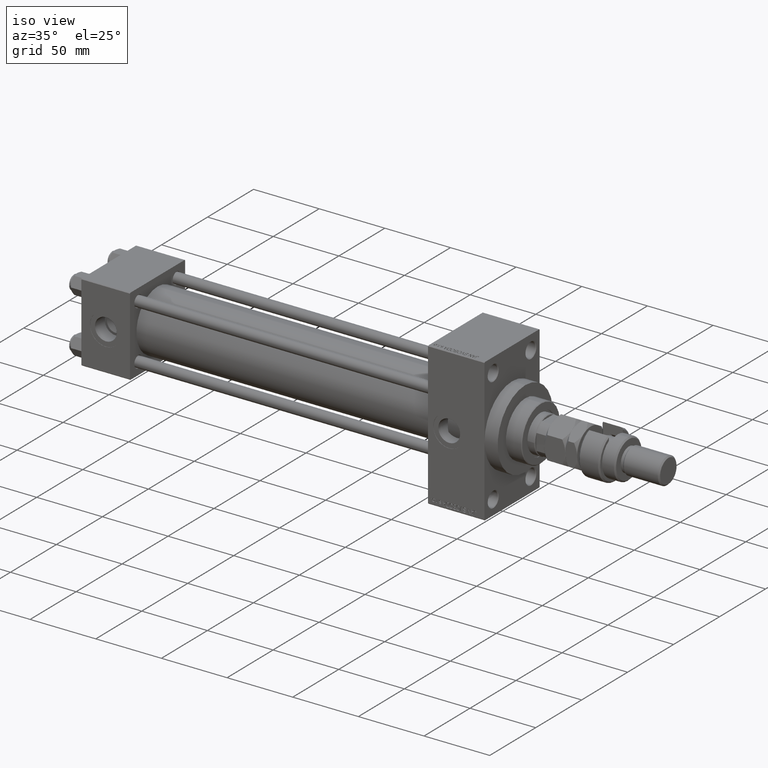
[diagram: clean part render]
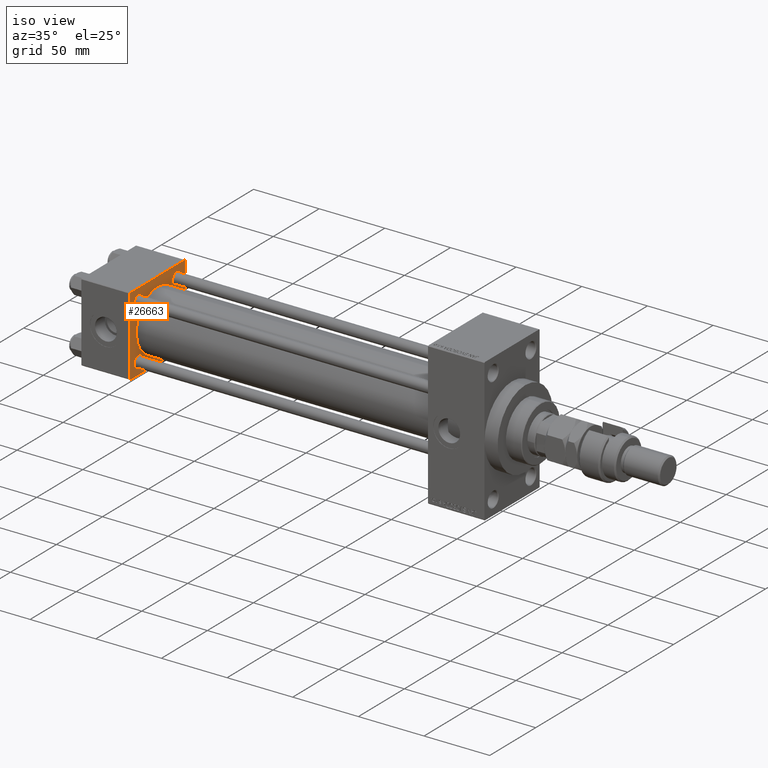
[diagram: same view with one face highlighted and labeled with its STEP entity id]
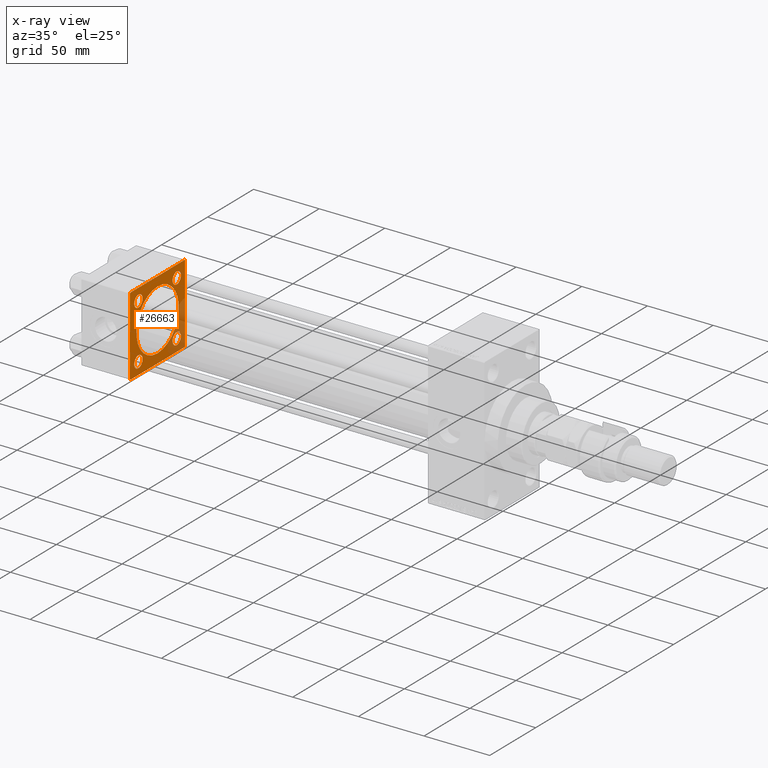
[diagram: x-ray of the same camera — body ghosted, the highlighted face saturated]
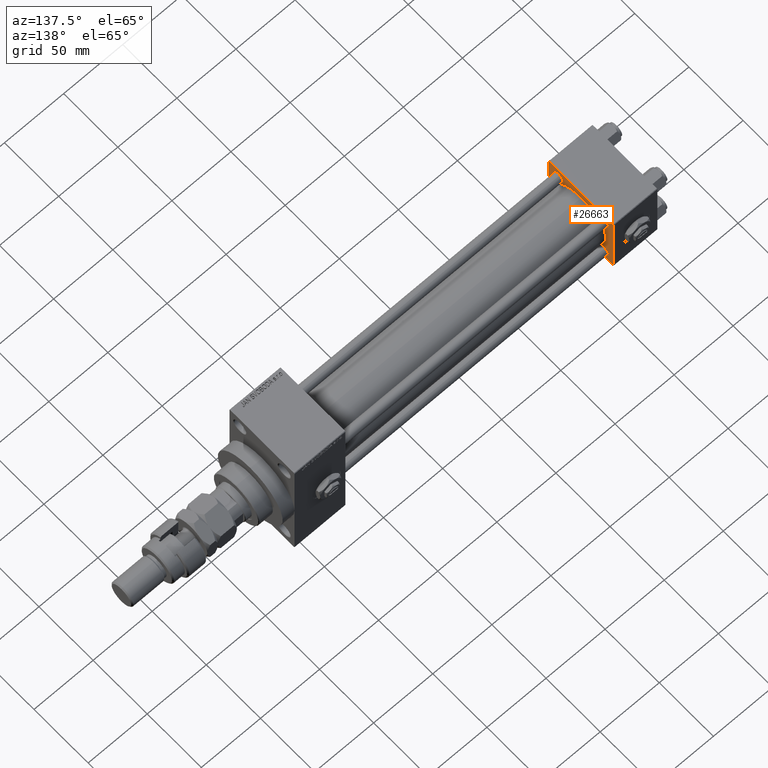
[diagram: same view with one face highlighted and labeled with its STEP entity id]
A machine part, iso view. The second image highlights one B-rep face of the part: STEP entity #26663.
The next image is the same camera in x-ray: the body ghosted, the highlighted face saturated — about 21% of this face is hidden behind the body in this view.
A second angle (auxiliary view) of the same face is appended — the face is thin or edge-on in the first view.
In plain terms, the highlighted planar face has unit normal (-1, 0, 0).
Its self-contained STEP definition (entity closure, byte-faithful):
#1260 = ORIENTED_EDGE ( 'NONE', *, *, #9073, .T. ) ;
#1601 = CARTESIAN_POINT ( 'NONE',  ( 37.00000000000000000, -29.50000000000000000, -30.00000000000000711 ) ) ;
#2236 = AXIS2_PLACEMENT_3D ( 'NONE', #42255, #33568, #41212 ) ;
#2408 = CARTESIAN_POINT ( 'NONE',  ( 37.00000000000000000, 29.99999999999999289, 29.50000000000000000 ) ) ;
#2424 = CARTESIAN_POINT ( 'NONE',  ( 37.00000000000000000, 29.99999999999999289, -29.50000000000000000 ) ) ;
#2567 = CARTESIAN_POINT ( 'NONE',  ( 37.00000000000000000, -20.84999999999999076, 16.34999999999994458 ) ) ;
#2688 = DIRECTION ( 'NONE',  ( -1.000000000000000000, 0.000000000000000000, -0.000000000000000000 ) ) ;
#2936 = EDGE_CURVE ( 'NONE', #15443, #46881, #31675, .T. ) ;
#2949 = LINE ( 'NONE', #30103, #3496 ) ;
#3020 = ORIENTED_EDGE ( 'NONE', *, *, #6088, .T. ) ;
#3212 = DIRECTION ( 'NONE',  ( -0.000000000000000000, 0.000000000000000000, 1.000000000000000000 ) ) ;
#3388 = CARTESIAN_POINT ( 'NONE',  ( 37.00000000000000711, -2.602085213965210642E-15, 0.000000000000000000 ) ) ;
#3496 = VECTOR ( 'NONE', #19015, 1000.000000000000000 ) ;
#3646 = CARTESIAN_POINT ( 'NONE',  ( 37.00000000000000000, -30.00000000000000000, 29.49999999999999289 ) ) ;
#3701 = VERTEX_POINT ( 'NONE', #6055 ) ;
#3730 = FACE_OUTER_BOUND ( 'NONE', #33419, .T. ) ;
#4382 = DIRECTION ( 'NONE',  ( -0.000000000000000000, 0.7071067811865574537, 0.7071067811865376918 ) ) ;
#4676 = ORIENTED_EDGE ( 'NONE', *, *, #36414, .F. ) ;
#4931 = AXIS2_PLACEMENT_3D ( 'NONE', #13919, #25282, #30278 ) ;
#5001 = VERTEX_POINT ( 'NONE', #9949 ) ;
#5130 = EDGE_CURVE ( 'NONE', #36057, #13940, #15205, .T. ) ;
#5198 = EDGE_CURVE ( 'NONE', #3701, #48445, #19954, .T. ) ;
#6055 = CARTESIAN_POINT ( 'NONE',  ( 37.00000000000000711, -2.602085213965210642E-15, 23.00000000000000000 ) ) ;
#6088 = EDGE_CURVE ( 'NONE', #30798, #50260, #11521, .T. ) ;
#6510 = CIRCLE ( 'NONE', #38499, 4.500000000000059508 ) ;
#6556 = EDGE_CURVE ( 'NONE', #33946, #9984, #15692, .T. ) ;
#6758 = CARTESIAN_POINT ( 'NONE',  ( 37.00000000000000000, 20.84999999999999787, -25.35000000000005826 ) ) ;
#7096 = DIRECTION ( 'NONE',  ( -1.000000000000000000, 0.000000000000000000, -0.000000000000000000 ) ) ;
#8455 = EDGE_CURVE ( 'NONE', #23105, #11040, #30910, .T. ) ;
#8730 = EDGE_CURVE ( 'NONE', #29597, #30798, #27229, .T. ) ;
#8857 = DIRECTION ( 'NONE',  ( 1.000000000000000000, -0.000000000000000000, 0.000000000000000000 ) ) ;
#9073 = EDGE_CURVE ( 'NONE', #5001, #33977, #6510, .T. ) ;
#9892 = VECTOR ( 'NONE', #15727, 1000.000000000000114 ) ;
#9949 = CARTESIAN_POINT ( 'NONE',  ( 37.00000000000000000, -20.84999999999999076, 25.35000000000006182 ) ) ;
#9984 = VERTEX_POINT ( 'NONE', #16316 ) ;
#10011 = CIRCLE ( 'NONE', #12521, 23.00000000000000000 ) ;
#10996 = LINE ( 'NONE', #11774, #21444 ) ;
#11040 = VERTEX_POINT ( 'NONE', #40060 ) ;
#11085 = EDGE_CURVE ( 'NONE', #46881, #15443, #33571, .T. ) ;
#11373 = FACE_BOUND ( 'NONE', #46106, .T. ) ;
#11455 = ORIENTED_EDGE ( 'NONE', *, *, #5198, .F. ) ;
#11521 = LINE ( 'NONE', #23128, #9892 ) ;
#11774 = CARTESIAN_POINT ( 'NONE',  ( 37.00000000000000000, 29.99999999999999289, 30.00000000000000000 ) ) ;
#11831 = VERTEX_POINT ( 'NONE', #2408 ) ;
#11924 = CIRCLE ( 'NONE', #24567, 4.500000000000059508 ) ;
#12221 = EDGE_CURVE ( 'NONE', #48445, #3701, #10011, .T. ) ;
#12521 = AXIS2_PLACEMENT_3D ( 'NONE', #3388, #31061, #42910 ) ;
#12636 = EDGE_LOOP ( 'NONE', ( #21272, #45104 ) ) ;
#12763 = ORIENTED_EDGE ( 'NONE', *, *, #5130, .T. ) ;
#12867 = CIRCLE ( 'NONE', #20435, 4.500000000000059508 ) ;
#13017 = ORIENTED_EDGE ( 'NONE', *, *, #47816, .T. ) ;
#13317 = CARTESIAN_POINT ( 'NONE',  ( 37.00000000000000711, -2.602085213965210642E-15, 0.000000000000000000 ) ) ;
#13682 = VERTEX_POINT ( 'NONE', #39637 ) ;
#13919 = CARTESIAN_POINT ( 'NONE',  ( 37.00000000000000000, -20.84999999999999076, -20.85000000000000497 ) ) ;
#13940 = VERTEX_POINT ( 'NONE', #2424 ) ;
#14452 = ORIENTED_EDGE ( 'NONE', *, *, #8730, .T. ) ;
#14895 = ORIENTED_EDGE ( 'NONE', *, *, #40306, .T. ) ;
#15182 = CARTESIAN_POINT ( 'NONE',  ( 37.00000000000000000, -20.84999999999999076, -20.85000000000000497 ) ) ;
#15205 = LINE ( 'NONE', #36024, #19128 ) ;
#15380 = ORIENTED_EDGE ( 'NONE', *, *, #41836, .T. ) ;
#15443 = VERTEX_POINT ( 'NONE', #40619 ) ;
#15599 = DIRECTION ( 'NONE',  ( 0.000000000000000000, 0.000000000000000000, 1.000000000000000000 ) ) ;
#15638 = CARTESIAN_POINT ( 'NONE',  ( 37.00000000000000000, 29.99999999999999289, 30.00000000000000000 ) ) ;
#15692 = CIRCLE ( 'NONE', #2236, 4.500000000000059508 ) ;
#15727 = DIRECTION ( 'NONE',  ( 0.000000000000000000, 0.7071067811865474617, -0.7071067811865474617 ) ) ;
#16316 = CARTESIAN_POINT ( 'NONE',  ( 37.00000000000000000, 20.84999999999999787, 25.35000000000005826 ) ) ;
#16324 = EDGE_LOOP ( 'NONE', ( #11455, #26499 ) ) ;
#16675 = CIRCLE ( 'NONE', #49513, 4.500000000000059508 ) ;
#16756 = DIRECTION ( 'NONE',  ( 0.000000000000000000, 0.000000000000000000, 1.000000000000000000 ) ) ;
#16763 = CARTESIAN_POINT ( 'NONE',  ( 37.00000000000000000, -30.00000000000000000, 29.49999999999999289 ) ) ;
#17091 = DIRECTION ( 'NONE',  ( 0.000000000000000000, 0.000000000000000000, 1.000000000000000000 ) ) ;
#18359 = EDGE_CURVE ( 'NONE', #9984, #33946, #11924, .T. ) ;
#19015 = DIRECTION ( 'NONE',  ( 0.000000000000000000, -1.000000000000000000, -1.156482317317871725E-16 ) ) ;
#19018 = FACE_BOUND ( 'NONE', #41629, .T. ) ;
#19128 = VECTOR ( 'NONE', #4382, 999.9999999999998863 ) ;
#19191 = ORIENTED_EDGE ( 'NONE', *, *, #43258, .T. ) ;
#19335 = ORIENTED_EDGE ( 'NONE', *, *, #6556, .T. ) ;
#19698 = VECTOR ( 'NONE', #43837, 1000.000000000000000 ) ;
#19907 = ORIENTED_EDGE ( 'NONE', *, *, #2936, .T. ) ;
#19954 = CIRCLE ( 'NONE', #25864, 23.00000000000000000 ) ;
#20435 = AXIS2_PLACEMENT_3D ( 'NONE', #31723, #27781, #51774 ) ;
#20693 = ORIENTED_EDGE ( 'NONE', *, *, #11085, .T. ) ;
#21272 = ORIENTED_EDGE ( 'NONE', *, *, #8455, .T. ) ;
#21444 = VECTOR ( 'NONE', #47380, 1000.000000000000000 ) ;
#22062 = CARTESIAN_POINT ( 'NONE',  ( 37.00000000000000000, 20.84999999999999787, 16.34999999999994102 ) ) ;
#22548 = AXIS2_PLACEMENT_3D ( 'NONE', #46962, #2688, #3212 ) ;
#23105 = VERTEX_POINT ( 'NONE', #6758 ) ;
#23128 = CARTESIAN_POINT ( 'NONE',  ( 37.00000000000000000, -29.50000000000001066, -30.00000000000000711 ) ) ;
#23634 = ORIENTED_EDGE ( 'NONE', *, *, #18359, .T. ) ;
#24567 = AXIS2_PLACEMENT_3D ( 'NONE', #31691, #26945, #15599 ) ;
#25282 = DIRECTION ( 'NONE',  ( -1.000000000000000000, 0.000000000000000000, -0.000000000000000000 ) ) ;
#25387 = DIRECTION ( 'NONE',  ( 0.000000000000000000, 0.000000000000000000, 1.000000000000000000 ) ) ;
#25861 = VECTOR ( 'NONE', #39339, 1000.000000000000000 ) ;
#25864 = AXIS2_PLACEMENT_3D ( 'NONE', #13317, #8857, #16756 ) ;
#26499 = ORIENTED_EDGE ( 'NONE', *, *, #12221, .F. ) ;
#26663 = ADVANCED_FACE ( 'NONE', ( #19018, #51725, #11373, #47497, #51195, #3730 ), #27469, .F. ) ;
#26945 = DIRECTION ( 'NONE',  ( -1.000000000000000000, 0.000000000000000000, -0.000000000000000000 ) ) ;
#27027 = EDGE_CURVE ( 'NONE', #11040, #23105, #16675, .T. ) ;
#27229 = LINE ( 'NONE', #43289, #25861 ) ;
#27267 = LINE ( 'NONE', #15638, #19698 ) ;
#27328 = CARTESIAN_POINT ( 'NONE',  ( 37.00000000000000000, -30.00000000000000000, -29.50000000000001776 ) ) ;
#27469 = PLANE ( 'NONE',  #22548 ) ;
#27781 = DIRECTION ( 'NONE',  ( -1.000000000000000000, 0.000000000000000000, -0.000000000000000000 ) ) ;
#28389 = AXIS2_PLACEMENT_3D ( 'NONE', #33035, #49130, #25387 ) ;
#28969 = CARTESIAN_POINT ( 'NONE',  ( 37.00000000000000000, -20.84999999999999076, 20.85000000000000497 ) ) ;
#29597 = VERTEX_POINT ( 'NONE', #3646 ) ;
#30103 = CARTESIAN_POINT ( 'NONE',  ( 37.00000000000000000, 29.99999999999999289, -30.00000000000000000 ) ) ;
#30278 = DIRECTION ( 'NONE',  ( 0.000000000000000000, 0.000000000000000000, 1.000000000000000000 ) ) ;
#30798 = VERTEX_POINT ( 'NONE', #27328 ) ;
#30910 = CIRCLE ( 'NONE', #28389, 4.500000000000059508 ) ;
#31061 = DIRECTION ( 'NONE',  ( 1.000000000000000000, -0.000000000000000000, 0.000000000000000000 ) ) ;
#31610 = CARTESIAN_POINT ( 'NONE',  ( 37.00000000000000000, 20.84999999999999787, -20.85000000000000142 ) ) ;
#31675 = CIRCLE ( 'NONE', #42601, 4.500000000000059508 ) ;
#31691 = CARTESIAN_POINT ( 'NONE',  ( 37.00000000000000000, 20.84999999999999787, 20.85000000000000142 ) ) ;
#31723 = CARTESIAN_POINT ( 'NONE',  ( 37.00000000000000000, -20.84999999999999076, 20.85000000000000497 ) ) ;
#33035 = CARTESIAN_POINT ( 'NONE',  ( 37.00000000000000000, 20.84999999999999787, -20.85000000000000142 ) ) ;
#33419 = EDGE_LOOP ( 'NONE', ( #4676, #12763, #46042, #15380, #13017, #14895, #14452, #3020 ) ) ;
#33568 = DIRECTION ( 'NONE',  ( -1.000000000000000000, 0.000000000000000000, -0.000000000000000000 ) ) ;
#33571 = CIRCLE ( 'NONE', #4931, 4.500000000000059508 ) ;
#33946 = VERTEX_POINT ( 'NONE', #22062 ) ;
#33977 = VERTEX_POINT ( 'NONE', #2567 ) ;
#35016 = LINE ( 'NONE', #47654, #36396 ) ;
#36024 = CARTESIAN_POINT ( 'NONE',  ( 37.00000000000000000, 29.99999999999999289, -29.50000000000000000 ) ) ;
#36057 = VERTEX_POINT ( 'NONE', #39956 ) ;
#36396 = VECTOR ( 'NONE', #43428, 1000.000000000000114 ) ;
#36414 = EDGE_CURVE ( 'NONE', #36057, #50260, #2949, .T. ) ;
#37129 = DIRECTION ( 'NONE',  ( -1.000000000000000000, 0.000000000000000000, -0.000000000000000000 ) ) ;
#38499 = AXIS2_PLACEMENT_3D ( 'NONE', #28969, #37129, #17091 ) ;
#39339 = DIRECTION ( 'NONE',  ( 0.000000000000000000, 0.000000000000000000, -1.000000000000000000 ) ) ;
#39637 = CARTESIAN_POINT ( 'NONE',  ( 37.00000000000000000, -29.49999999999998579, 29.99999999999999289 ) ) ;
#39956 = CARTESIAN_POINT ( 'NONE',  ( 37.00000000000000000, 29.49999999999997868, -30.00000000000000000 ) ) ;
#40060 = CARTESIAN_POINT ( 'NONE',  ( 37.00000000000000000, 20.84999999999999787, -16.34999999999994102 ) ) ;
#40306 = EDGE_CURVE ( 'NONE', #13682, #29597, #45476, .T. ) ;
#40529 = CARTESIAN_POINT ( 'NONE',  ( 37.00000000000000000, -20.84999999999999076, -25.35000000000006182 ) ) ;
#40619 = CARTESIAN_POINT ( 'NONE',  ( 37.00000000000000000, -20.84999999999999076, -16.34999999999994458 ) ) ;
#40886 = CARTESIAN_POINT ( 'NONE',  ( 37.00000000000000711, 2.146024240737012665E-16, -23.00000000000000000 ) ) ;
#41212 = DIRECTION ( 'NONE',  ( 0.000000000000000000, 0.000000000000000000, 1.000000000000000000 ) ) ;
#41629 = EDGE_LOOP ( 'NONE', ( #20693, #19907 ) ) ;
#41836 = EDGE_CURVE ( 'NONE', #11831, #42472, #35016, .T. ) ;
#42255 = CARTESIAN_POINT ( 'NONE',  ( 37.00000000000000000, 20.84999999999999787, 20.85000000000000142 ) ) ;
#42472 = VERTEX_POINT ( 'NONE', #44526 ) ;
#42601 = AXIS2_PLACEMENT_3D ( 'NONE', #15182, #47364, #42867 ) ;
#42867 = DIRECTION ( 'NONE',  ( 0.000000000000000000, 0.000000000000000000, 1.000000000000000000 ) ) ;
#42910 = DIRECTION ( 'NONE',  ( 0.000000000000000000, 0.000000000000000000, 1.000000000000000000 ) ) ;
#43258 = EDGE_CURVE ( 'NONE', #33977, #5001, #12867, .T. ) ;
#43289 = CARTESIAN_POINT ( 'NONE',  ( 37.00000000000000000, -30.00000000000000000, 29.99999999999999289 ) ) ;
#43428 = DIRECTION ( 'NONE',  ( 0.000000000000000000, -0.7071067811865474617, 0.7071067811865474617 ) ) ;
#43837 = DIRECTION ( 'NONE',  ( 0.000000000000000000, 0.000000000000000000, -1.000000000000000000 ) ) ;
#44182 = EDGE_LOOP ( 'NONE', ( #19335, #23634 ) ) ;
#44526 = CARTESIAN_POINT ( 'NONE',  ( 37.00000000000000000, 29.49999999999999289, 30.00000000000000000 ) ) ;
#44962 = DIRECTION ( 'NONE',  ( -0.000000000000000000, -0.7071067811865474617, -0.7071067811865474617 ) ) ;
#45104 = ORIENTED_EDGE ( 'NONE', *, *, #27027, .T. ) ;
#45117 = EDGE_CURVE ( 'NONE', #11831, #13940, #27267, .T. ) ;
#45476 = LINE ( 'NONE', #16763, #49923 ) ;
#46042 = ORIENTED_EDGE ( 'NONE', *, *, #45117, .F. ) ;
#46106 = EDGE_LOOP ( 'NONE', ( #19191, #1260 ) ) ;
#46881 = VERTEX_POINT ( 'NONE', #40529 ) ;
#46962 = CARTESIAN_POINT ( 'NONE',  ( 37.00000000000000000, 0.000000000000000000, 0.000000000000000000 ) ) ;
#47364 = DIRECTION ( 'NONE',  ( -1.000000000000000000, 0.000000000000000000, -0.000000000000000000 ) ) ;
#47380 = DIRECTION ( 'NONE',  ( 0.000000000000000000, -1.000000000000000000, -1.156482317317871725E-16 ) ) ;
#47497 = FACE_BOUND ( 'NONE', #44182, .T. ) ;
#47654 = CARTESIAN_POINT ( 'NONE',  ( 37.00000000000000000, 29.49999999999999289, 30.00000000000000000 ) ) ;
#47816 = EDGE_CURVE ( 'NONE', #42472, #13682, #10996, .T. ) ;
#48445 = VERTEX_POINT ( 'NONE', #40886 ) ;
#49130 = DIRECTION ( 'NONE',  ( -1.000000000000000000, 0.000000000000000000, -0.000000000000000000 ) ) ;
#49513 = AXIS2_PLACEMENT_3D ( 'NONE', #31610, #7096, #50871 ) ;
#49923 = VECTOR ( 'NONE', #44962, 1000.000000000000114 ) ;
#50260 = VERTEX_POINT ( 'NONE', #1601 ) ;
#50871 = DIRECTION ( 'NONE',  ( 0.000000000000000000, 0.000000000000000000, 1.000000000000000000 ) ) ;
#51195 = FACE_BOUND ( 'NONE', #16324, .T. ) ;
#51725 = FACE_BOUND ( 'NONE', #12636, .T. ) ;
#51774 = DIRECTION ( 'NONE',  ( 0.000000000000000000, 0.000000000000000000, 1.000000000000000000 ) ) ;